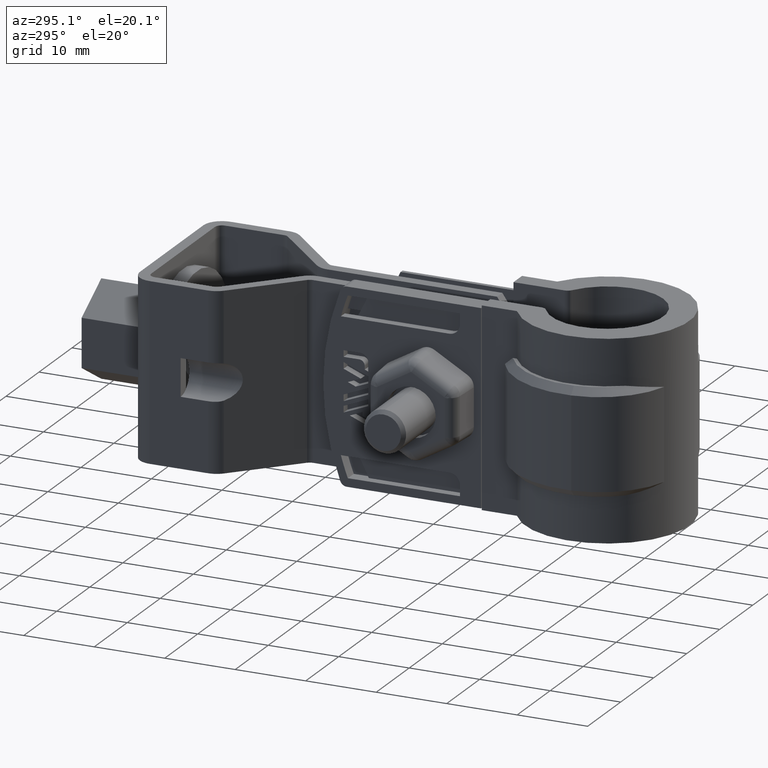
[diagram: clean part render]
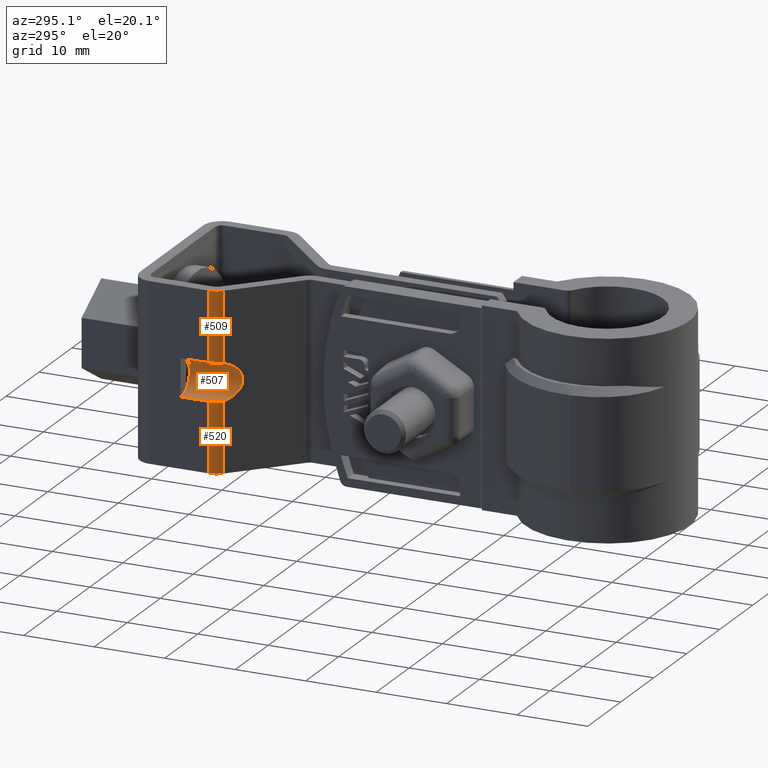
[diagram: same view with one multi-face feature highlighted, each face labeled with its STEP entity id]
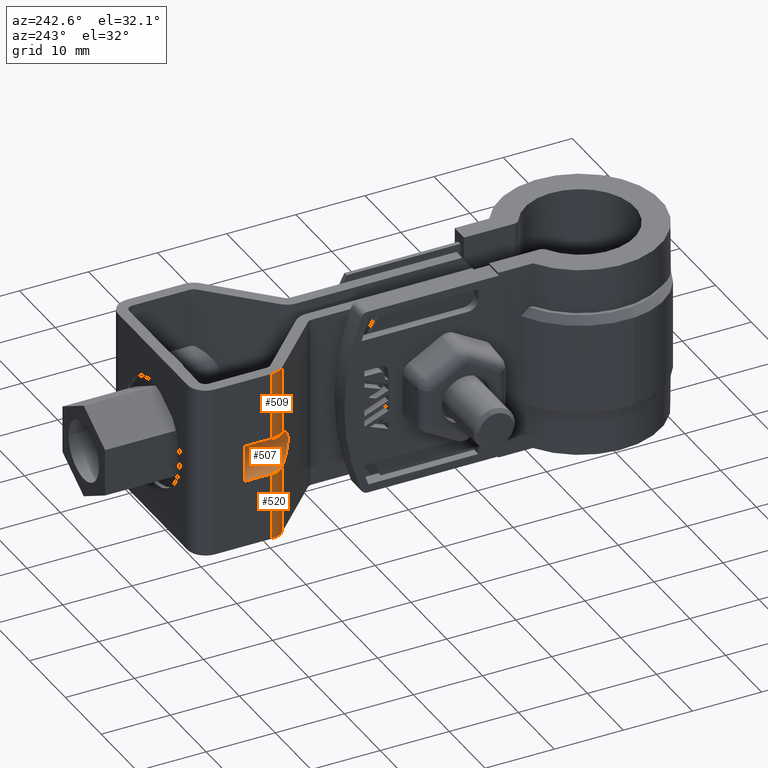
[diagram: same view with one multi-face feature highlighted, each face labeled with its STEP entity id]
A machine part, auxiliary view. The highlighted faces form ONE feature: a constant-radius fillet chain: 3 tangent blend faces with common blend radius 2.61667 mm. The faces share edges in the B-rep.
A second angle (auxiliary view) of the same feature is appended — it is thin or edge-on in the first view.
Their STEP definitions:
[1] entity #520 (Cylinder):
#520 = ADVANCED_FACE( '', ( #1022 ), #1023, .T. );
#1022 = FACE_OUTER_BOUND( '', #2303, .T. );
#1023 = CYLINDRICAL_SURFACE( '', #2304, 2.59999999999999 );
#2303 = EDGE_LOOP( '', ( #5119, #5120, #5121, #5122 ) );
#2304 = AXIS2_PLACEMENT_3D( '', #5123, #5124, #5125 );
#5119 = ORIENTED_EDGE( '', *, *, #7001, .F. );
#5120 = ORIENTED_EDGE( '', *, *, #6973, .F. );
#5121 = ORIENTED_EDGE( '', *, *, #7000, .T. );
#5122 = ORIENTED_EDGE( '', *, *, #6993, .F. );
#5123 = CARTESIAN_POINT( '', ( -9.65000000000235, 50.8912819000984, -6.75043354547711E-010 ) );
#5124 = DIRECTION( '', ( -2.12762802152738E-013, 5.16559017782481E-012, 1.00000000000000 ) );
#5125 = DIRECTION( '', ( -1.50571936274857E-013, 1.00000000000000, -5.16559017782484E-012 ) );
#6973 = EDGE_CURVE( '', #8206, #8196, #8208, .T. );
#6993 = EDGE_CURVE( '', #8233, #8235, #8236, .T. );
#7000 = EDGE_CURVE( '', #8206, #8235, #8246, .T. );
#7001 = EDGE_CURVE( '', #8196, #8233, #8247, .T. );
#8196 = VERTEX_POINT( '', #11303 );
#8206 = VERTEX_POINT( '', #11321 );
#8208 = B_SPLINE_CURVE_WITH_KNOTS( '', 3, ( #11324, #11325, #11326, #11327, #11328, #11329, #11330, #11331, #11332, #11333 ), .UNSPECIFIED., .F., .F., ( 4, 2, 2, 2, 4 ), ( 0.000000000000000, 0.000517346174284564, 0.00103469234856913, 0.00155203852285369, 0.00206938469713826 ), .UNSPECIFIED. );
#8233 = VERTEX_POINT( '', #11372 );
#8235 = VERTEX_POINT( '', #11375 );
#8236 = CIRCLE( '', #11376, 2.59999999999999 );
#8246 = LINE( '', #11389, #11390 );
#8247 = LINE( '', #11391, #11392 );
#11303 = CARTESIAN_POINT( '', ( -11.4656419723782, 49.0302487922723, -15.0312610469640 ) );
#11321 = CARTESIAN_POINT( '', ( -12.2499999999991, 50.8912819000196, -15.1500000006756 ) );
#11324 = CARTESIAN_POINT( '', ( -12.2499999999991, 50.8912819000196, -15.1500000006756 ) );
#11325 = CARTESIAN_POINT( '', ( -12.2499999999991, 50.7163918357714, -15.1500000006746 ) );
#11326 = CARTESIAN_POINT( '', ( -12.2325330354073, 50.5444494278659, -15.1501636966785 ) );
#11327 = CARTESIAN_POINT( '', ( -12.1640563524465, 50.2062342378577, -15.1488273638497 ) );
#11328 = CARTESIAN_POINT( '', ( -12.1121297117020, 50.0381033895757, -15.1472759535358 ) );
#11329 = CARTESIAN_POINT( '', ( -11.9772119360838, 49.7190699343420, -15.1367906368778 ) );
#11330 = CARTESIAN_POINT( '', ( -11.8947254704599, 49.5680587149907, -15.1279277841514 ) );
#11331 = CARTESIAN_POINT( '', ( -11.7003962036480, 49.2833057051725, -15.0942552104675 ) );
#11332 = CARTESIAN_POINT( '', ( -11.5880224298569, 49.1496443550229, -15.0691828940171 ) );
#11333 = CARTESIAN_POINT( '', ( -11.4656419723782, 49.0302487922723, -15.0312610469640 ) );
#11372 = CARTESIAN_POINT( '', ( -11.4656419723760, 49.0302487922208, -25.0000000006658 ) );
#11375 = CARTESIAN_POINT( '', ( -12.2499999999970, 50.8912818999688, -25.0000000006756 ) );
#11376 = AXIS2_PLACEMENT_3D( '', #13120, #13121, #13122 );
#11389 = CARTESIAN_POINT( '', ( -12.2500000000023, 50.8912819000980, -6.75584588272216E-010 ) );
#11390 = VECTOR( '', #13135, 1000.00000000000 );
#11391 = CARTESIAN_POINT( '', ( -11.4656419723814, 49.0302487923500, -6.65814625655514E-010 ) );
#11392 = VECTOR( '', #13136, 1000.00000000000 );
#13120 = CARTESIAN_POINT( '', ( -9.64999999999703, 50.8912818999692, -25.0000000006751 ) );
#13121 = DIRECTION( '', ( 2.12762802152738E-013, -5.16559017782481E-012, -1.00000000000000 ) );
#13122 = DIRECTION( '', ( -0.698323835530394, -0.715781964518609, 3.54885894932398E-012 ) );
#13135 = DIRECTION( '', ( 2.12762802152738E-013, -5.16559017782481E-012, -1.00000000000000 ) );
#13136 = DIRECTION( '', ( 2.12762802152738E-013, -5.16559017782481E-012, -1.00000000000000 ) );
[2] entity #507 (Cylinder):
#507 = ADVANCED_FACE( '', ( #993 ), #994, .F. );
#993 = FACE_OUTER_BOUND( '', #2274, .T. );
#994 = CYLINDRICAL_SURFACE( '', #2275, 2.64999999999997 );
#2274 = EDGE_LOOP( '', ( #4988, #4989, #4990, #4991, #4992, #4993, #4994, #4995 ) );
#2275 = AXIS2_PLACEMENT_3D( '', #4996, #4997, #4998 );
#4988 = ORIENTED_EDGE( '', *, *, #6967, .T. );
#4989 = ORIENTED_EDGE( '', *, *, #6968, .T. );
#4990 = ORIENTED_EDGE( '', *, *, #6969, .T. );
#4991 = ORIENTED_EDGE( '', *, *, #6970, .F. );
#4992 = ORIENTED_EDGE( '', *, *, #6965, .F. );
#4993 = ORIENTED_EDGE( '', *, *, #6971, .F. );
#4994 = ORIENTED_EDGE( '', *, *, #6972, .F. );
#4995 = ORIENTED_EDGE( '', *, *, #6973, .T. );
#4996 = CARTESIAN_POINT( '', ( -12.2499999999987, 44.7954761009190, -12.5000000006441 ) );
#4997 = DIRECTION( '', ( 1.50571936274857E-013, -1.00000000000000, 5.16559017782484E-012 ) );
#4998 = DIRECTION( '', ( -1.91706918336711E-013, 5.16559017782481E-012, 1.00000000000000 ) );
#6965 = EDGE_CURVE( '', #8191, #8193, #8194, .T. );
#6967 = EDGE_CURVE( '', #8196, #8197, #8198, .T. );
#6968 = EDGE_CURVE( '', #8197, #8199, #8200, .T. );
#6969 = EDGE_CURVE( '', #8199, #8201, #8202, .T. );
#6970 = EDGE_CURVE( '', #8193, #8201, #8203, .T. );
#6971 = EDGE_CURVE( '', #8204, #8191, #8205, .T. );
#6972 = EDGE_CURVE( '', #8206, #8204, #8207, .T. );
#6973 = EDGE_CURVE( '', #8206, #8196, #8208, .T. );
#8191 = VERTEX_POINT( '', #11296 );
#8193 = VERTEX_POINT( '', #11299 );
#8194 = CIRCLE( '', #11300, 2.64999999999997 );
#8196 = VERTEX_POINT( '', #11303 );
#8197 = VERTEX_POINT( '', #11304 );
#8198 = ELLIPSE( '', #11305, 3.70224472166266, 2.64999999999997 );
#8199 = VERTEX_POINT( '', #11306 );
#8200 = B_SPLINE_CURVE_WITH_KNOTS( '', 3, ( #11307, #11308, #11309, #11310, #11311, #11312, #11313, #11314 ), .UNSPECIFIED., .F., .F., ( 4, 2, 2, 4 ), ( 1.73472347597682E-018, 0.000516787748161294, 0.00103357549632259, 0.00206715099264519 ), .UNSPECIFIED. );
#8201 = VERTEX_POINT( '', #11315 );
#8202 = LINE( '', #11316, #11317 );
#8203 = CIRCLE( '', #11318, 2.64999999999997 );
#8204 = VERTEX_POINT( '', #11319 );
#8205 = CIRCLE( '', #11320, 2.64999999999997 );
#8206 = VERTEX_POINT( '', #11321 );
#8207 = LINE( '', #11322, #11323 );
#8208 = B_SPLINE_CURVE_WITH_KNOTS( '', 3, ( #11324, #11325, #11326, #11327, #11328, #11329, #11330, #11331, #11332, #11333 ), .UNSPECIFIED., .F., .F., ( 4, 2, 2, 2, 4 ), ( 0.000000000000000, 0.000517346174284564, 0.00103469234856913, 0.00155203852285369, 0.00206938469713826 ), .UNSPECIFIED. );
#11296 = CARTESIAN_POINT( '', ( -10.6499999999998, 54.7954761009083, -14.6124630181232 ) );
#11299 = CARTESIAN_POINT( '', ( -10.6500000000007, 54.7954761009301, -10.3875369832677 ) );
#11300 = AXIS2_PLACEMENT_3D( '', #13078, #13079, #13080 );
#11303 = CARTESIAN_POINT( '', ( -11.4656419723782, 49.0302487922723, -15.0312610469640 ) );
#11304 = CARTESIAN_POINT( '', ( -11.4656419723792, 49.0302487922984, -9.96873895436758 ) );
#11305 = AXIS2_PLACEMENT_3D( '', #13082, #13083, #13084 );
#11306 = CARTESIAN_POINT( '', ( -12.2500000000002, 50.8912819000470, -9.85000000067561 ) );
#11307 = CARTESIAN_POINT( '', ( -11.4656419723792, 49.0302487922984, -9.96873895436756 ) );
#11308 = CARTESIAN_POINT( '', ( -11.5880007594310, 49.1496232131703, -9.93082382229825 ) );
#11309 = CARTESIAN_POINT( '', ( -11.6979909725815, 49.2803221785397, -9.90626133085726 ) );
#11310 = CARTESIAN_POINT( '', ( -11.8919853000436, 49.5635167994052, -9.87244986256781 ) );
#11311 = CARTESIAN_POINT( '', ( -11.9765770457460, 49.7178419979383, -9.86327473278652 ) );
#11312 = CARTESIAN_POINT( '', ( -12.1789956025120, 50.1956749297784, -9.84749564132406 ) );
#11313 = CARTESIAN_POINT( '', ( -12.2500000000002, 50.5417400579998, -9.85000000067380 ) );
#11314 = CARTESIAN_POINT( '', ( -12.2500000000002, 50.8912819000470, -9.85000000067561 ) );
#11315 = CARTESIAN_POINT( '', ( -12.2500000000008, 54.7954761009327, -9.85000000069579 ) );
#11316 = CARTESIAN_POINT( '', ( -12.2499999999993, 44.7954761009327, -9.85000000064414 ) );
#11317 = VECTOR( '', #13085, 1000.00000000000 );
#11318 = AXIS2_PLACEMENT_3D( '', #13086, #13087, #13088 );
#11319 = CARTESIAN_POINT( '', ( -12.2499999999997, 54.7954761009053, -15.1500000006957 ) );
#11320 = AXIS2_PLACEMENT_3D( '', #13089, #13090, #13091 );
#11321 = CARTESIAN_POINT( '', ( -12.2499999999991, 50.8912819000196, -15.1500000006756 ) );
#11322 = CARTESIAN_POINT( '', ( -12.2499999999982, 44.7954761009053, -15.1500000006441 ) );
#11323 = VECTOR( '', #13092, 1000.00000000000 );
#11324 = CARTESIAN_POINT( '', ( -12.2499999999991, 50.8912819000196, -15.1500000006756 ) );
#11325 = CARTESIAN_POINT( '', ( -12.2499999999991, 50.7163918357714, -15.1500000006746 ) );
#11326 = CARTESIAN_POINT( '', ( -12.2325330354073, 50.5444494278659, -15.1501636966785 ) );
#11327 = CARTESIAN_POINT( '', ( -12.1640563524465, 50.2062342378577, -15.1488273638497 ) );
#11328 = CARTESIAN_POINT( '', ( -12.1121297117020, 50.0381033895757, -15.1472759535358 ) );
#11329 = CARTESIAN_POINT( '', ( -11.9772119360838, 49.7190699343420, -15.1367906368778 ) );
#11330 = CARTESIAN_POINT( '', ( -11.8947254704599, 49.5680587149907, -15.1279277841514 ) );
#11331 = CARTESIAN_POINT( '', ( -11.7003962036480, 49.2833057051725, -15.0942552104675 ) );
#11332 = CARTESIAN_POINT( '', ( -11.5880224298569, 49.1496443550229, -15.0691828940171 ) );
#11333 = CARTESIAN_POINT( '', ( -11.4656419723782, 49.0302487922723, -15.0312610469640 ) );
#13078 = CARTESIAN_POINT( '', ( -12.2500000000002, 54.7954761009190, -12.5000000006958 ) );
#13079 = DIRECTION( '', ( 1.50571936274857E-013, -1.00000000000000, 5.16559017782484E-012 ) );
#13080 = DIRECTION( '', ( -2.13309135207366E-013, 5.16559017782481E-012, 1.00000000000000 ) );
#13082 = CARTESIAN_POINT( '', ( -12.2499999999995, 49.7954761009192, -12.5000000006699 ) );
#13083 = DIRECTION( '', ( -0.698323835530391, -0.715781964518612, 3.54889405177176E-012 ) );
#13084 = DIRECTION( '', ( -0.715781964518612, 0.698323835530391, -3.75951054224748E-012 ) );
#13085 = DIRECTION( '', ( -1.50571936274857E-013, 1.00000000000000, -5.16559017782484E-012 ) );
#13086 = CARTESIAN_POINT( '', ( -12.2500000000002, 54.7954761009190, -12.5000000006958 ) );
#13087 = DIRECTION( '', ( 1.50571936274857E-013, -1.00000000000000, 5.16559017782484E-012 ) );
#13088 = DIRECTION( '', ( -2.13309135207366E-013, 5.16559017782481E-012, 1.00000000000000 ) );
#13089 = CARTESIAN_POINT( '', ( -12.2500000000002, 54.7954761009190, -12.5000000006958 ) );
#13090 = DIRECTION( '', ( 1.50571936274857E-013, -1.00000000000000, 5.16559017782484E-012 ) );
#13091 = DIRECTION( '', ( -2.13309135207366E-013, 5.16559017782481E-012, 1.00000000000000 ) );
#13092 = DIRECTION( '', ( -1.50571936274857E-013, 1.00000000000000, -5.16559017782484E-012 ) );
[3] entity #509 (Cylinder):
#509 = ADVANCED_FACE( '', ( #997 ), #998, .T. );
#997 = FACE_OUTER_BOUND( '', #2278, .T. );
#998 = CYLINDRICAL_SURFACE( '', #2279, 2.59999999999999 );
#2278 = EDGE_LOOP( '', ( #5006, #5007, #5008, #5009 ) );
#2279 = AXIS2_PLACEMENT_3D( '', #5010, #5011, #5012 );
#5006 = ORIENTED_EDGE( '', *, *, #6976, .T. );
#5007 = ORIENTED_EDGE( '', *, *, #6968, .F. );
#5008 = ORIENTED_EDGE( '', *, *, #6977, .F. );
#5009 = ORIENTED_EDGE( '', *, *, #6895, .T. );
#5010 = CARTESIAN_POINT( '', ( -9.65000000000235, 50.8912819000984, -6.75043354547711E-010 ) );
#5011 = DIRECTION( '', ( -2.12762802152738E-013, 5.16559017782481E-012, 1.00000000000000 ) );
#5012 = DIRECTION( '', ( -1.50571936274857E-013, 1.00000000000000, -5.16559017782484E-012 ) );
#6895 = EDGE_CURVE( '', #8076, #8074, #8077, .T. );
#6968 = EDGE_CURVE( '', #8197, #8199, #8200, .T. );
#6976 = EDGE_CURVE( '', #8074, #8199, #8211, .T. );
#6977 = EDGE_CURVE( '', #8076, #8197, #8212, .T. );
#8074 = VERTEX_POINT( '', #11102 );
#8076 = VERTEX_POINT( '', #11105 );
#8077 = CIRCLE( '', #11106, 2.59999999999999 );
#8197 = VERTEX_POINT( '', #11304 );
#8199 = VERTEX_POINT( '', #11306 );
#8200 = B_SPLINE_CURVE_WITH_KNOTS( '', 3, ( #11307, #11308, #11309, #11310, #11311, #11312, #11313, #11314 ), .UNSPECIFIED., .F., .F., ( 4, 2, 2, 4 ), ( 1.73472347597682E-018, 0.000516787748161294, 0.00103357549632259, 0.00206715099264519 ), .UNSPECIFIED. );
#8211 = LINE( '', #11338, #11339 );
#8212 = LINE( '', #11340, #11341 );
#11102 = CARTESIAN_POINT( '', ( -12.2500000000023, 50.8912819000980, -6.75584588272216E-010 ) );
#11105 = CARTESIAN_POINT( '', ( -11.4656419723814, 49.0302487923500, -6.65814625655514E-010 ) );
#11106 = AXIS2_PLACEMENT_3D( '', #12968, #12969, #12970 );
#11304 = CARTESIAN_POINT( '', ( -11.4656419723792, 49.0302487922984, -9.96873895436758 ) );
#11306 = CARTESIAN_POINT( '', ( -12.2500000000002, 50.8912819000470, -9.85000000067561 ) );
#11307 = CARTESIAN_POINT( '', ( -11.4656419723792, 49.0302487922984, -9.96873895436756 ) );
#11308 = CARTESIAN_POINT( '', ( -11.5880007594310, 49.1496232131703, -9.93082382229825 ) );
#11309 = CARTESIAN_POINT( '', ( -11.6979909725815, 49.2803221785397, -9.90626133085726 ) );
#11310 = CARTESIAN_POINT( '', ( -11.8919853000436, 49.5635167994052, -9.87244986256781 ) );
#11311 = CARTESIAN_POINT( '', ( -11.9765770457460, 49.7178419979383, -9.86327473278652 ) );
#11312 = CARTESIAN_POINT( '', ( -12.1789956025120, 50.1956749297784, -9.84749564132406 ) );
#11313 = CARTESIAN_POINT( '', ( -12.2500000000002, 50.5417400579998, -9.85000000067380 ) );
#11314 = CARTESIAN_POINT( '', ( -12.2500000000002, 50.8912819000470, -9.85000000067561 ) );
#11338 = CARTESIAN_POINT( '', ( -12.2500000000023, 50.8912819000980, -6.75584588272216E-010 ) );
#11339 = VECTOR( '', #13095, 1000.00000000000 );
#11340 = CARTESIAN_POINT( '', ( -11.4656419723814, 49.0302487923500, -6.65814625655514E-010 ) );
#11341 = VECTOR( '', #13096, 1000.00000000000 );
#12968 = CARTESIAN_POINT( '', ( -9.65000000000235, 50.8912819000984, -6.75043354547711E-010 ) );
#12969 = DIRECTION( '', ( 2.12762802152738E-013, -5.16559017782481E-012, -1.00000000000000 ) );
#12970 = DIRECTION( '', ( -0.698323835530394, -0.715781964518609, 3.54885894932398E-012 ) );
#13095 = DIRECTION( '', ( 2.12762802152738E-013, -5.16559017782481E-012, -1.00000000000000 ) );
#13096 = DIRECTION( '', ( 2.12762802152738E-013, -5.16559017782481E-012, -1.00000000000000 ) );